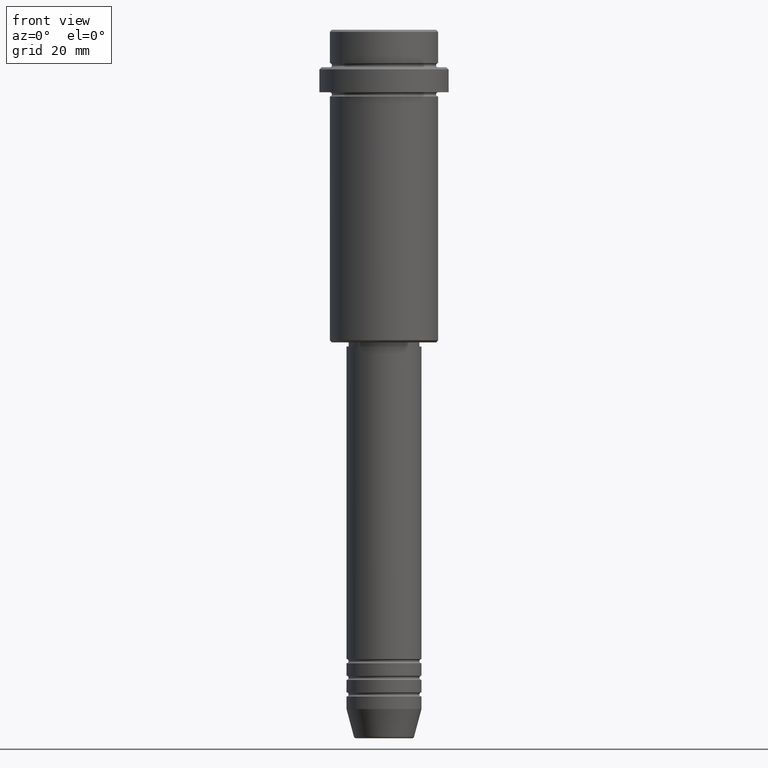
[diagram: clean part render]
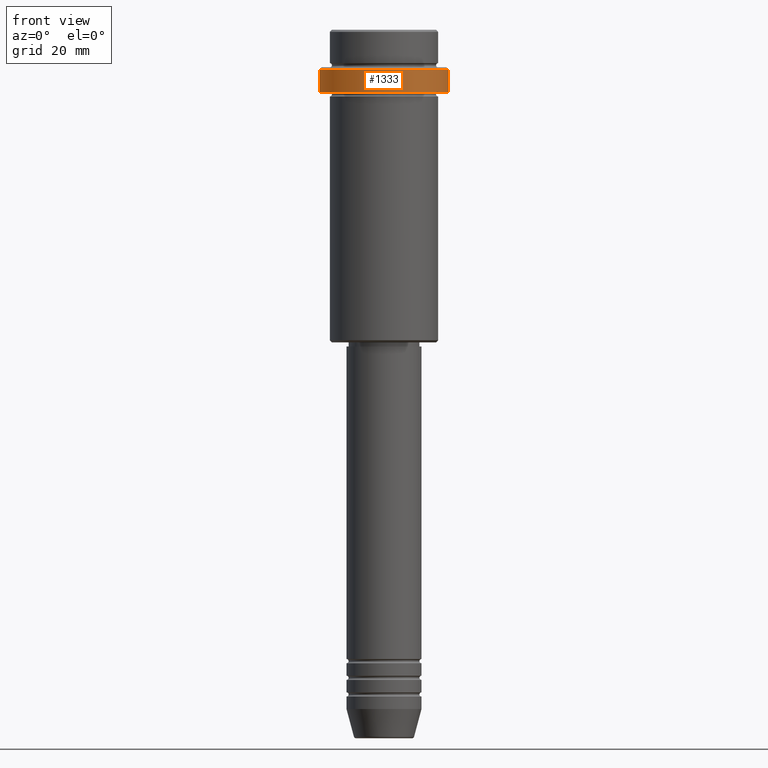
[diagram: same view with one face highlighted and labeled with its STEP entity id]
A machine part, front view. The second image highlights one B-rep face of the part: STEP entity #1333.
In plain terms, the highlighted cylindrical surface (partial cylindrical patch) has radius 15.5 mm, axis along (-0, -0, 1).
Its self-contained STEP definition (entity closure, byte-faithful):
#122 = DIRECTION ( 'NONE',  ( 1.000000000000000000, 0.000000000000000000, 0.000000000000000000 ) ) ;
#157 = VERTEX_POINT ( 'NONE', #1119 ) ;
#174 = VERTEX_POINT ( 'NONE', #561 ) ;
#182 = LINE ( 'NONE', #1073, #1059 ) ;
#218 = VERTEX_POINT ( 'NONE', #985 ) ;
#255 = ORIENTED_EDGE ( 'NONE', *, *, #1383, .T. ) ;
#407 = EDGE_LOOP ( 'NONE', ( #524, #255, #958, #830 ) ) ;
#447 = DIRECTION ( 'NONE',  ( -0.000000000000000000, -0.000000000000000000, 1.000000000000000000 ) ) ;
#462 = AXIS2_PLACEMENT_3D ( 'NONE', #1173, #865, #122 ) ;
#467 = CYLINDRICAL_SURFACE ( 'NONE', #1396, 15.50000000000000000 ) ;
#524 = ORIENTED_EDGE ( 'NONE', *, *, #660, .F. ) ;
#561 = CARTESIAN_POINT ( 'NONE',  ( 15.50000000000000000, 0.000000000000000000, -9.500000000000026645 ) ) ;
#586 = CARTESIAN_POINT ( 'NONE',  ( 0.000000000000000000, 0.000000000000000000, 0.000000000000000000 ) ) ;
#593 = AXIS2_PLACEMENT_3D ( 'NONE', #1070, #1054, #842 ) ;
#594 = CIRCLE ( 'NONE', #462, 15.50000000000000000 ) ;
#608 = EDGE_CURVE ( 'NONE', #624, #174, #182, .T. ) ;
#622 = EDGE_CURVE ( 'NONE', #174, #218, #594, .T. ) ;
#624 = VERTEX_POINT ( 'NONE', #1407 ) ;
#660 = EDGE_CURVE ( 'NONE', #157, #218, #892, .T. ) ;
#683 = CIRCLE ( 'NONE', #593, 15.50000000000000000 ) ;
#708 = VECTOR ( 'NONE', #447, 1000.000000000000000 ) ;
#804 = DIRECTION ( 'NONE',  ( 1.000000000000000000, 0.000000000000000000, 0.000000000000000000 ) ) ;
#830 = ORIENTED_EDGE ( 'NONE', *, *, #622, .T. ) ;
#842 = DIRECTION ( 'NONE',  ( 1.000000000000000000, 0.000000000000000000, 0.000000000000000000 ) ) ;
#865 = DIRECTION ( 'NONE',  ( 0.000000000000000000, 0.000000000000000000, -1.000000000000000000 ) ) ;
#892 = LINE ( 'NONE', #1209, #708 ) ;
#902 = DIRECTION ( 'NONE',  ( -0.000000000000000000, -0.000000000000000000, 1.000000000000000000 ) ) ;
#917 = FACE_OUTER_BOUND ( 'NONE', #407, .T. ) ;
#958 = ORIENTED_EDGE ( 'NONE', *, *, #608, .T. ) ;
#966 = DIRECTION ( 'NONE',  ( -0.000000000000000000, -0.000000000000000000, 1.000000000000000000 ) ) ;
#985 = CARTESIAN_POINT ( 'NONE',  ( -15.50000000000000000, 1.898202538678397557E-15, -9.500000000000026645 ) ) ;
#1054 = DIRECTION ( 'NONE',  ( -0.000000000000000000, -0.000000000000000000, 1.000000000000000000 ) ) ;
#1059 = VECTOR ( 'NONE', #966, 1000.000000000000000 ) ;
#1070 = CARTESIAN_POINT ( 'NONE',  ( 0.000000000000000000, 0.000000000000000000, -15.00000000000000000 ) ) ;
#1073 = CARTESIAN_POINT ( 'NONE',  ( 15.50000000000000000, 0.000000000000000000, 0.000000000000000000 ) ) ;
#1119 = CARTESIAN_POINT ( 'NONE',  ( -15.50000000000000000, 1.898202538678397557E-15, -15.00000000000000000 ) ) ;
#1173 = CARTESIAN_POINT ( 'NONE',  ( 0.000000000000000000, 0.000000000000000000, -9.500000000000026645 ) ) ;
#1209 = CARTESIAN_POINT ( 'NONE',  ( -15.50000000000000000, 1.898202538678397557E-15, 0.000000000000000000 ) ) ;
#1333 = ADVANCED_FACE ( 'NONE', ( #917 ), #467, .T. ) ;
#1383 = EDGE_CURVE ( 'NONE', #157, #624, #683, .T. ) ;
#1396 = AXIS2_PLACEMENT_3D ( 'NONE', #586, #902, #804 ) ;
#1407 = CARTESIAN_POINT ( 'NONE',  ( 15.50000000000000000, 0.000000000000000000, -15.00000000000000000 ) ) ;